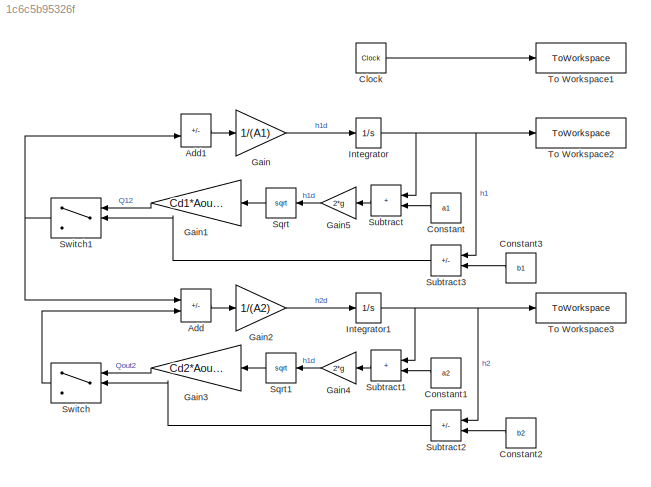
MODEL slx_1c6c5b95326f
KIND model
CONFIG AbsTol = tol
CONFIG EnableMultiTasking = off
CONFIG FixedStep = auto
CONFIG MaxStep = maxstep
CONFIG MinStep = auto
CONFIG RelTol = tol
CONFIG SampleTimeConstraint = Unconstrained
CONFIG SolverName = ode45
CONFIG StartTime = 0.0
CONFIG StopTime = tf
BLOCK [Sum] Add
  IconShape = rectangular
  Inputs = +-
BLOCK [Sum] Add1
  IconShape = rectangular
  Inputs = +-
BLOCK [Clock] Clock
BLOCK [Constant] Constant
  NameLocation = top
  Value = a1
BLOCK [Constant] Constant1
  NameLocation = top
  Value = a2
BLOCK [Constant] Constant2
  NameLocation = top
  Value = b2
BLOCK [Constant] Constant3
  NameLocation = top
  Value = b1
BLOCK [Gain] Gain
  Gain = 1/(A1)
BLOCK [Gain] Gain1
  Gain = Cd1*Aout1
  NameLocation = top
BLOCK [Gain] Gain2
  Gain = 1/(A2)
BLOCK [Gain] Gain3
  Gain = Cd2*Aout2
  NameLocation = top
BLOCK [Gain] Gain4
  Gain = 2*g
  NameLocation = top
BLOCK [Gain] Gain5
  Gain = 2*g
  NameLocation = top
BLOCK [Integrator] Integrator
  InitialCondition = h10
BLOCK [Integrator] Integrator1
  InitialCondition = h20
BLOCK [Sqrt] Sqrt
  NameLocation = top
BLOCK [Sqrt] Sqrt1
  NameLocation = top
BLOCK [Sum] Subtract
  IconShape = rectangular
  NameLocation = top
BLOCK [Sum] Subtract1
  IconShape = rectangular
  NameLocation = top
BLOCK [Sum] Subtract2
  IconShape = rectangular
  Inputs = +-
  NameLocation = top
BLOCK [Sum] Subtract3
  IconShape = rectangular
  Inputs = +-
  NameLocation = top
BLOCK [Switch] Switch
  Criteria = u2 > Threshold
  InputSameDT = off
  NameLocation = top
  SaturateOnIntegerOverflow = off
BLOCK [Switch] Switch1
  Criteria = u2 > Threshold
  InputSameDT = off
  NameLocation = top
  SaturateOnIntegerOverflow = off
BLOCK [ToWorkspace] To Workspace1
  FixptAsFi = on
  MaxDataPoints = inf
  SampleTime = -1
  Save2DSignal = 2-D array (concatenate along first dimension)
  VariableName = time
BLOCK [ToWorkspace] To Workspace2
  FixptAsFi = on
  MaxDataPoints = inf
  SampleTime = -1
  Save2DSignal = 2-D array (concatenate along first dimension)
  VariableName = h1
BLOCK [ToWorkspace] To Workspace3
  FixptAsFi = on
  MaxDataPoints = inf
  SampleTime = -1
  Save2DSignal = 2-D array (concatenate along first dimension)
  VariableName = h2
LINE Add1:1 -> Gain:1
LINE Add:1 -> Gain2:1
LINE Clock:1 -> To Workspace1:1
LINE Constant1:1 -> Subtract1:2
LINE Constant2:1 -> Subtract2:2
LINE Constant3:1 -> Subtract3:2
LINE Constant:1 -> Subtract:2
LINE Gain1:1 -> Switch1:1
LINE Gain2:1 -> Integrator1:1
LINE Gain3:1 -> Switch:1
LINE Gain4:1 -> Sqrt1:1
LINE Gain5:1 -> Sqrt:1
LINE Gain:1 -> Integrator:1
NET Integrator1:1 -> Subtract1:1, Subtract2:1, To Workspace3:1
NET Integrator:1 -> Subtract3:1, Subtract:1, To Workspace2:1
LINE Sqrt1:1 -> Gain3:1
LINE Sqrt:1 -> Gain1:1
LINE Subtract1:1 -> Gain4:1
LINE Subtract2:1 -> Switch:2
LINE Subtract3:1 -> Switch1:2
LINE Subtract:1 -> Gain5:1
NET Switch1:1 -> Add1:2, Add:1
LINE Switch:1 -> Add:2
note: NET lines group one-source signal fan-out (src -> all destinations, sorted); 1:1 wires keep LINE
